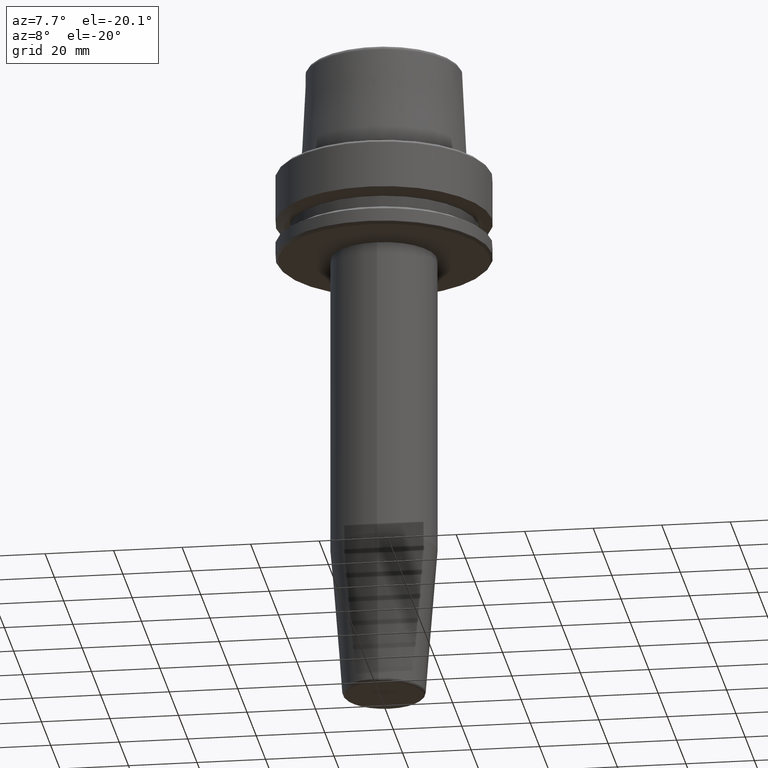
[diagram: clean part render]
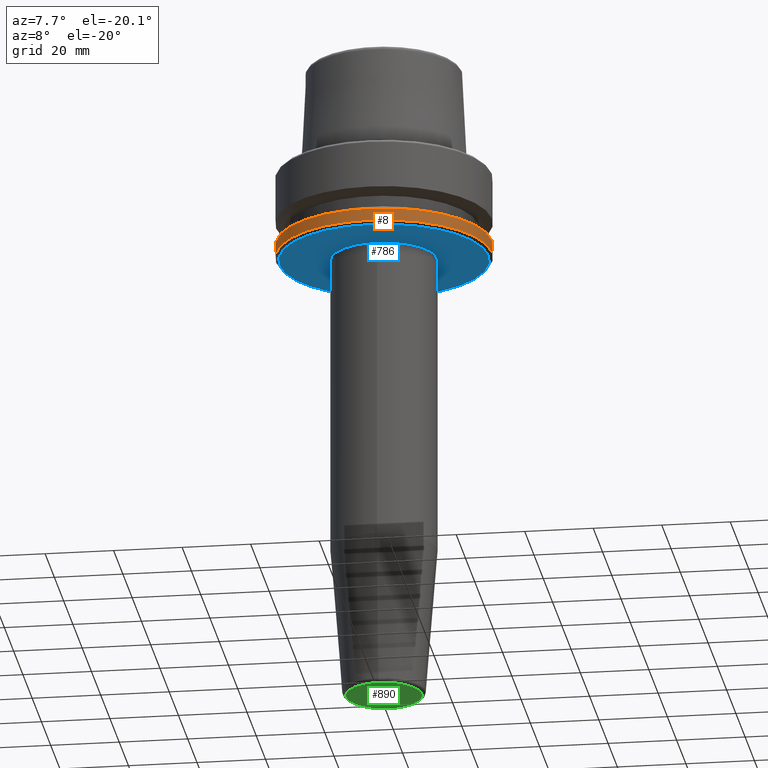
[diagram: same view with three faces highlighted in distinct colors, each labeled with its STEP entity id]
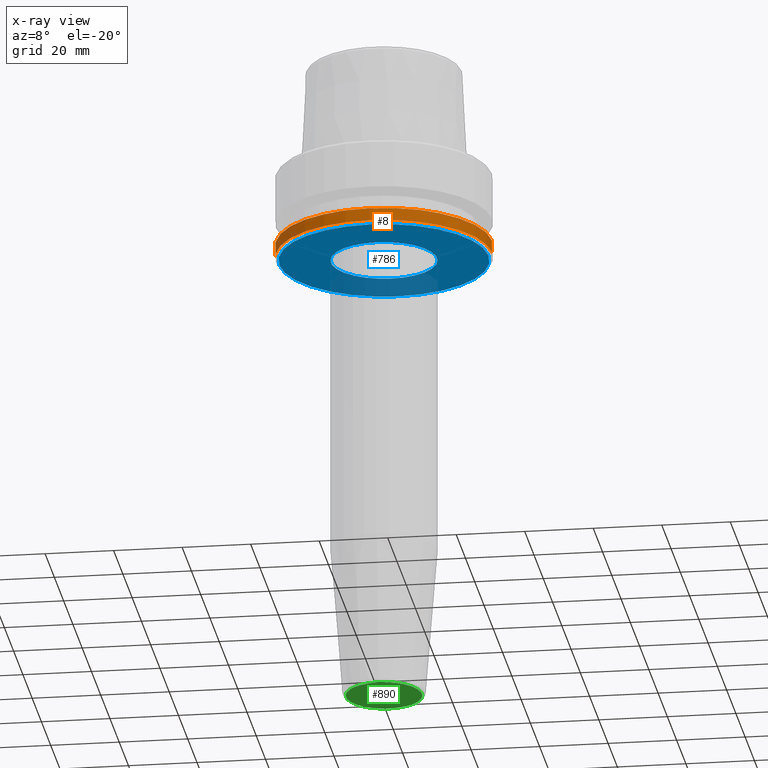
[diagram: x-ray of the same camera — body ghosted, the three highlighted faces saturated]
A machine part, auxiliary view with three faces highlighted in distinct colors.
The next image is the same camera in x-ray (body ghosted, the three faces saturated) — at least one of them is partly hidden behind the body in this view.
Their STEP definitions:

[orange] entity #8 — the highlighted cylindrical surface (partial cylindrical patch) has radius 31.5 mm, axis along (-0, -0, 1).
#8 = ADVANCED_FACE ( 'NONE', ( #928 ), #253, .T. ) ;
#18 = VECTOR ( 'NONE', #800, 1000.000000000000000 ) ;
#44 = DIRECTION ( 'NONE',  ( -0.0000000000000000000, -0.0000000000000000000, 1.000000000000000000 ) ) ;
#83 = CARTESIAN_POINT ( 'NONE',  ( 31.50000000000000000, 0.0000000000000000000, -25.03431457505077200 ) ) ;
#93 = EDGE_CURVE ( 'NONE', #250, #815, #919, .T. ) ;
#118 = CARTESIAN_POINT ( 'NONE',  ( 31.50000000000000000, 0.0000000000000000000, 78.96908074195309300 ) ) ;
#145 = DIRECTION ( 'NONE',  ( 1.000000000000000000, 0.0000000000000000000, 0.0000000000000000000 ) ) ;
#161 = ORIENTED_EDGE ( 'NONE', *, *, #93, .T. ) ;
#219 = CARTESIAN_POINT ( 'NONE',  ( 0.0000000000000000000, 0.0000000000000000000, -21.37749907475931700 ) ) ;
#241 = CARTESIAN_POINT ( 'NONE',  ( 0.0000000000000000000, 0.0000000000000000000, 78.96908074195309300 ) ) ;
#250 = VERTEX_POINT ( 'NONE', #825 ) ;
#253 = CYLINDRICAL_SURFACE ( 'NONE', #758, 31.50000000000000000 ) ;
#298 = CARTESIAN_POINT ( 'NONE',  ( 31.50000000000000000, 0.0000000000000000000, -21.37749907475931700 ) ) ;
#316 = DIRECTION ( 'NONE',  ( 1.000000000000000000, 0.0000000000000000000, 0.0000000000000000000 ) ) ;
#323 = VERTEX_POINT ( 'NONE', #651 ) ;
#390 = DIRECTION ( 'NONE',  ( -0.0000000000000000000, -0.0000000000000000000, 1.000000000000000000 ) ) ;
#485 = VECTOR ( 'NONE', #390, 1000.000000000000000 ) ;
#525 = AXIS2_PLACEMENT_3D ( 'NONE', #219, #888, #316 ) ;
#547 = LINE ( 'NONE', #118, #18 ) ;
#555 = ORIENTED_EDGE ( 'NONE', *, *, #690, .F. ) ;
#594 = DIRECTION ( 'NONE',  ( -0.0000000000000000000, -0.0000000000000000000, 1.000000000000000000 ) ) ;
#629 = EDGE_CURVE ( 'NONE', #815, #884, #547, .T. ) ;
#630 = CIRCLE ( 'NONE', #525, 31.50000000000000000 ) ;
#651 = CARTESIAN_POINT ( 'NONE',  ( -31.50000000000000000, 3.857637417314162700E-015, -21.37749907475931700 ) ) ;
#673 = EDGE_LOOP ( 'NONE', ( #555, #161, #747, #692 ) ) ;
#690 = EDGE_CURVE ( 'NONE', #250, #323, #1216, .T. ) ;
#692 = ORIENTED_EDGE ( 'NONE', *, *, #1007, .F. ) ;
#747 = ORIENTED_EDGE ( 'NONE', *, *, #629, .T. ) ;
#758 = AXIS2_PLACEMENT_3D ( 'NONE', #241, #44, #145 ) ;
#800 = DIRECTION ( 'NONE',  ( -0.0000000000000000000, -0.0000000000000000000, 1.000000000000000000 ) ) ;
#815 = VERTEX_POINT ( 'NONE', #83 ) ;
#825 = CARTESIAN_POINT ( 'NONE',  ( -31.50000000000000000, 3.857637417314161900E-015, -25.03431457505077200 ) ) ;
#884 = VERTEX_POINT ( 'NONE', #298 ) ;
#888 = DIRECTION ( 'NONE',  ( -0.0000000000000000000, -0.0000000000000000000, 1.000000000000000000 ) ) ;
#919 = CIRCLE ( 'NONE', #1254, 31.50000000000000000 ) ;
#928 = FACE_OUTER_BOUND ( 'NONE', #673, .T. ) ;
#1007 = EDGE_CURVE ( 'NONE', #323, #884, #630, .T. ) ;
#1163 = CARTESIAN_POINT ( 'NONE',  ( 0.0000000000000000000, 0.0000000000000000000, -25.03431457505077200 ) ) ;
#1216 = LINE ( 'NONE', #1248, #485 ) ;
#1248 = CARTESIAN_POINT ( 'NONE',  ( -31.50000000000000000, 3.857637417314162700E-015, 78.96908074195309300 ) ) ;
#1254 = AXIS2_PLACEMENT_3D ( 'NONE', #1163, #594, #1256 ) ;
#1256 = DIRECTION ( 'NONE',  ( 1.000000000000000000, 0.0000000000000000000, 0.0000000000000000000 ) ) ;

[blue] entity #786 — the highlighted planar face has unit normal (0, -0, 1).
#21 = DIRECTION ( 'NONE',  ( 1.000000000000000000, 0.0000000000000000000, 0.0000000000000000000 ) ) ;
#48 = EDGE_LOOP ( 'NONE', ( #202, #979 ) ) ;
#107 = DIRECTION ( 'NONE',  ( 1.000000000000000000, 0.0000000000000000000, 0.0000000000000000000 ) ) ;
#112 = CARTESIAN_POINT ( 'NONE',  ( 0.0000000000000000000, 0.0000000000000000000, -26.00000000000001100 ) ) ;
#165 = EDGE_CURVE ( 'NONE', #399, #338, #828, .T. ) ;
#176 = CIRCLE ( 'NONE', #441, 15.49999999999998900 ) ;
#183 = DIRECTION ( 'NONE',  ( 0.0000000000000000000, -0.0000000000000000000, 1.000000000000000000 ) ) ;
#197 = AXIS2_PLACEMENT_3D ( 'NONE', #767, #183, #853 ) ;
#202 = ORIENTED_EDGE ( 'NONE', *, *, #1255, .F. ) ;
#249 = CARTESIAN_POINT ( 'NONE',  ( 0.0000000000000000000, 15.49999999999998900, -25.99999999999999600 ) ) ;
#262 = CARTESIAN_POINT ( 'NONE',  ( 30.53431457505076800, 0.0000000000000000000, -26.00000000000001100 ) ) ;
#338 = VERTEX_POINT ( 'NONE', #1095 ) ;
#345 = AXIS2_PLACEMENT_3D ( 'NONE', #112, #795, #107 ) ;
#376 = CARTESIAN_POINT ( 'NONE',  ( 0.0000000000000000000, 0.0000000000000000000, -25.99999999999999600 ) ) ;
#391 = VERTEX_POINT ( 'NONE', #249 ) ;
#399 = VERTEX_POINT ( 'NONE', #262 ) ;
#403 = VERTEX_POINT ( 'NONE', #982 ) ;
#432 = FACE_OUTER_BOUND ( 'NONE', #1149, .T. ) ;
#441 = AXIS2_PLACEMENT_3D ( 'NONE', #376, #1040, #478 ) ;
#478 = DIRECTION ( 'NONE',  ( 1.000000000000000000, 0.0000000000000000000, 0.0000000000000000000 ) ) ;
#533 = DIRECTION ( 'NONE',  ( 0.0000000000000000000, 0.0000000000000000000, -1.000000000000000000 ) ) ;
#592 = PLANE ( 'NONE',  #197 ) ;
#618 = DIRECTION ( 'NONE',  ( -0.0000000000000000000, -0.0000000000000000000, 1.000000000000000000 ) ) ;
#725 = AXIS2_PLACEMENT_3D ( 'NONE', #1184, #618, #21 ) ;
#767 = CARTESIAN_POINT ( 'NONE',  ( 0.0000000000000000000, 30.53431457505076800, -26.00000000000001100 ) ) ;
#783 = CIRCLE ( 'NONE', #1091, 15.49999999999998900 ) ;
#786 = ADVANCED_FACE ( 'NONE', ( #432, #909 ), #592, .F. ) ;
#795 = DIRECTION ( 'NONE',  ( -0.0000000000000000000, -0.0000000000000000000, 1.000000000000000000 ) ) ;
#828 = CIRCLE ( 'NONE', #345, 30.53431457505076800 ) ;
#853 = DIRECTION ( 'NONE',  ( 1.000000000000000000, 0.0000000000000000000, 0.0000000000000000000 ) ) ;
#909 = FACE_BOUND ( 'NONE', #48, .T. ) ;
#974 = ORIENTED_EDGE ( 'NONE', *, *, #165, .F. ) ;
#979 = ORIENTED_EDGE ( 'NONE', *, *, #1123, .F. ) ;
#982 = CARTESIAN_POINT ( 'NONE',  ( 1.898202538678396800E-015, -15.49999999999999100, -25.99999999999999600 ) ) ;
#1040 = DIRECTION ( 'NONE',  ( 0.0000000000000000000, 0.0000000000000000000, -1.000000000000000000 ) ) ;
#1041 = EDGE_CURVE ( 'NONE', #338, #399, #1094, .T. ) ;
#1091 = AXIS2_PLACEMENT_3D ( 'NONE', #1096, #533, #1197 ) ;
#1094 = CIRCLE ( 'NONE', #725, 30.53431457505076800 ) ;
#1095 = CARTESIAN_POINT ( 'NONE',  ( -30.53431457505076800, 3.756694181974139400E-015, -26.00000000000001100 ) ) ;
#1096 = CARTESIAN_POINT ( 'NONE',  ( 0.0000000000000000000, 0.0000000000000000000, -25.99999999999999600 ) ) ;
#1121 = ORIENTED_EDGE ( 'NONE', *, *, #1041, .F. ) ;
#1123 = EDGE_CURVE ( 'NONE', #403, #391, #783, .T. ) ;
#1149 = EDGE_LOOP ( 'NONE', ( #974, #1121 ) ) ;
#1184 = CARTESIAN_POINT ( 'NONE',  ( 0.0000000000000000000, 0.0000000000000000000, -26.00000000000001100 ) ) ;
#1197 = DIRECTION ( 'NONE',  ( 1.000000000000000000, 0.0000000000000000000, 0.0000000000000000000 ) ) ;
#1255 = EDGE_CURVE ( 'NONE', #391, #403, #176, .T. ) ;

[green] entity #890 — the highlighted planar face has unit normal (0, -0, 1).
#192 = CARTESIAN_POINT ( 'NONE',  ( 0.0000000000000000000, 4.898587196589414600E-015, -160.0000000000000000 ) ) ;
#256 = EDGE_LOOP ( 'NONE', ( #302, #632 ) ) ;
#285 = DIRECTION ( 'NONE',  ( 0.0000000000000000000, 1.000000000000000000, 0.0000000000000000000 ) ) ;
#302 = ORIENTED_EDGE ( 'NONE', *, *, #654, .T. ) ;
#303 = DIRECTION ( 'NONE',  ( 0.0000000000000000000, -1.000000000000000000, -3.655662087007025400E-017 ) ) ;
#321 = CARTESIAN_POINT ( 'NONE',  ( 1.417414554388215900E-015, -11.07560950834178600, -160.0000000000000000 ) ) ;
#463 = VERTEX_POINT ( 'NONE', #622 ) ;
#536 = DIRECTION ( 'NONE',  ( -0.0000000000000000000, 3.655662087007025400E-017, -1.000000000000000000 ) ) ;
#560 = FACE_OUTER_BOUND ( 'NONE', #256, .T. ) ;
#622 = CARTESIAN_POINT ( 'NONE',  ( 0.0000000000000000000, 11.07560950834179700, -160.0000000000000000 ) ) ;
#632 = ORIENTED_EDGE ( 'NONE', *, *, #1153, .T. ) ;
#654 = EDGE_CURVE ( 'NONE', #463, #1038, #770, .T. ) ;
#691 = CARTESIAN_POINT ( 'NONE',  ( 0.0000000000000000000, 7.400647676132018000E-033, -160.0000000000000000 ) ) ;
#762 = CIRCLE ( 'NONE', #1222, 11.07560950834179200 ) ;
#770 = CIRCLE ( 'NONE', #864, 11.07560950834179200 ) ;
#785 = PLANE ( 'NONE',  #1045 ) ;
#862 = DIRECTION ( 'NONE',  ( -0.0000000000000000000, 3.655662087007025400E-017, -1.000000000000000000 ) ) ;
#864 = AXIS2_PLACEMENT_3D ( 'NONE', #192, #862, #285 ) ;
#878 = DIRECTION ( 'NONE',  ( 0.0000000000000000000, -3.655662087007025400E-017, 1.000000000000000000 ) ) ;
#890 = ADVANCED_FACE ( 'NONE', ( #560 ), #785, .F. ) ;
#1038 = VERTEX_POINT ( 'NONE', #321 ) ;
#1045 = AXIS2_PLACEMENT_3D ( 'NONE', #691, #878, #303 ) ;
#1100 = CARTESIAN_POINT ( 'NONE',  ( 0.0000000000000000000, 4.898587196589414600E-015, -160.0000000000000000 ) ) ;
#1153 = EDGE_CURVE ( 'NONE', #1038, #463, #762, .T. ) ;
#1205 = DIRECTION ( 'NONE',  ( 0.0000000000000000000, 1.000000000000000000, 0.0000000000000000000 ) ) ;
#1222 = AXIS2_PLACEMENT_3D ( 'NONE', #1100, #536, #1205 ) ;